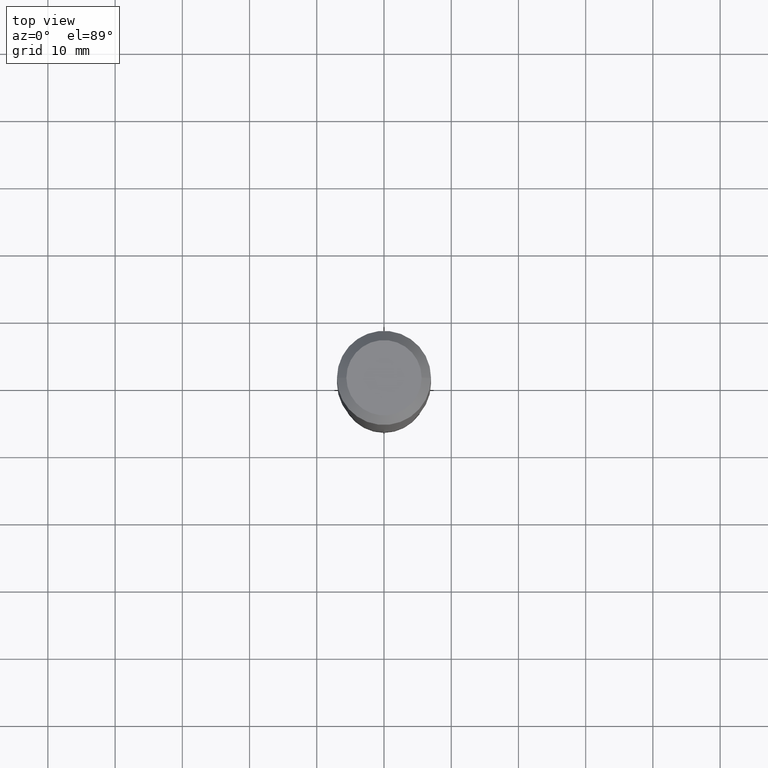
[diagram: clean part render]
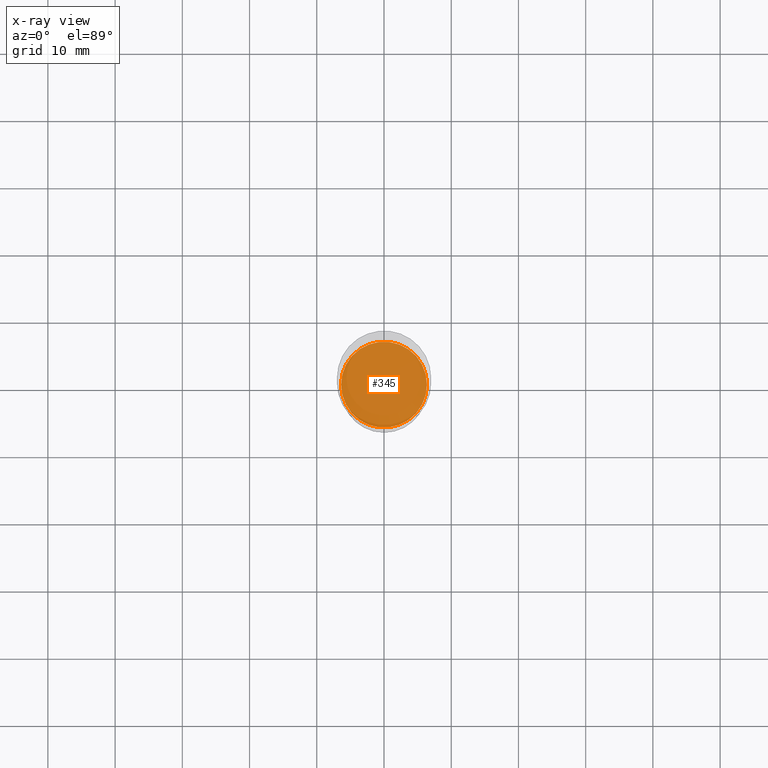
[diagram: x-ray — body ghosted, one internal face saturated and labeled with its STEP entity id]
A machine part, top view, then the same camera in x-ray: the body is ghosted and one INTERNAL B-rep face — a face not visible from any outside direction — is saturated and labeled: STEP entity #345.
In plain terms, the highlighted planar face has unit normal (-0, 0, 1).
Its self-contained STEP definition (entity closure, byte-faithful):
#27 = DIRECTION ( 'NONE',  ( 1.000000000000000000, -6.982962677686263555E-15, 0.000000000000000000 ) ) ;
#30 = EDGE_CURVE ( 'NONE', #116, #486, #316, .T. ) ;
#42 = CARTESIAN_POINT ( 'NONE',  ( 3.971264563627302430E-29, -1.077779516486871561E-14, -2.354300000000000725 ) ) ;
#65 = CARTESIAN_POINT ( 'NONE',  ( 5.757367210401669319E-29, -8.219994516038420659E-15, -2.354300000000000725 ) ) ;
#92 = ORIENTED_EDGE ( 'NONE', *, *, #30, .F. ) ;
#106 = EDGE_CURVE ( 'NONE', #486, #116, #426, .T. ) ;
#116 = VERTEX_POINT ( 'NONE', #295 ) ;
#138 = AXIS2_PLACEMENT_3D ( 'NONE', #65, #323, #27 ) ;
#156 = ORIENTED_EDGE ( 'NONE', *, *, #106, .F. ) ;
#173 = CARTESIAN_POINT ( 'NONE',  ( 5.757367210401669319E-29, -8.219994516038420659E-15, -2.354300000000000725 ) ) ;
#201 = DIRECTION ( 'NONE',  ( -2.438088387897960049E-29, 3.491481338843145188E-15, 1.000000000000000000 ) ) ;
#215 = DIRECTION ( 'NONE',  ( -2.445468806185136597E-29, 3.491481338843145583E-15, 1.000000000000000000 ) ) ;
#236 = FACE_OUTER_BOUND ( 'NONE', #383, .T. ) ;
#259 = AXIS2_PLACEMENT_3D ( 'NONE', #42, #201, #277 ) ;
#277 = DIRECTION ( 'NONE',  ( 1.000000000000000000, -6.982962677686265922E-15, 4.876176775795935793E-29 ) ) ;
#295 = CARTESIAN_POINT ( 'NONE',  ( 0.2514500000000000068, -9.975860481342631268E-15, -2.354300000000000725 ) ) ;
#316 = CIRCLE ( 'NONE', #411, 0.2514500000000000068 ) ;
#323 = DIRECTION ( 'NONE',  ( -2.445468806185136597E-29, 3.491481338843145583E-15, 1.000000000000000000 ) ) ;
#345 = ADVANCED_FACE ( 'NONE', ( #236 ), #377, .F. ) ;
#377 = PLANE ( 'NONE',  #259 ) ;
#382 = CARTESIAN_POINT ( 'NONE',  ( -0.2514500000000000068, -6.430685579795536309E-15, -2.354300000000000725 ) ) ;
#383 = EDGE_LOOP ( 'NONE', ( #92, #156 ) ) ;
#411 = AXIS2_PLACEMENT_3D ( 'NONE', #173, #215, #443 ) ;
#426 = CIRCLE ( 'NONE', #138, 0.2514500000000000068 ) ;
#443 = DIRECTION ( 'NONE',  ( 1.000000000000000000, -6.982962677686263555E-15, 0.000000000000000000 ) ) ;
#486 = VERTEX_POINT ( 'NONE', #382 ) ;